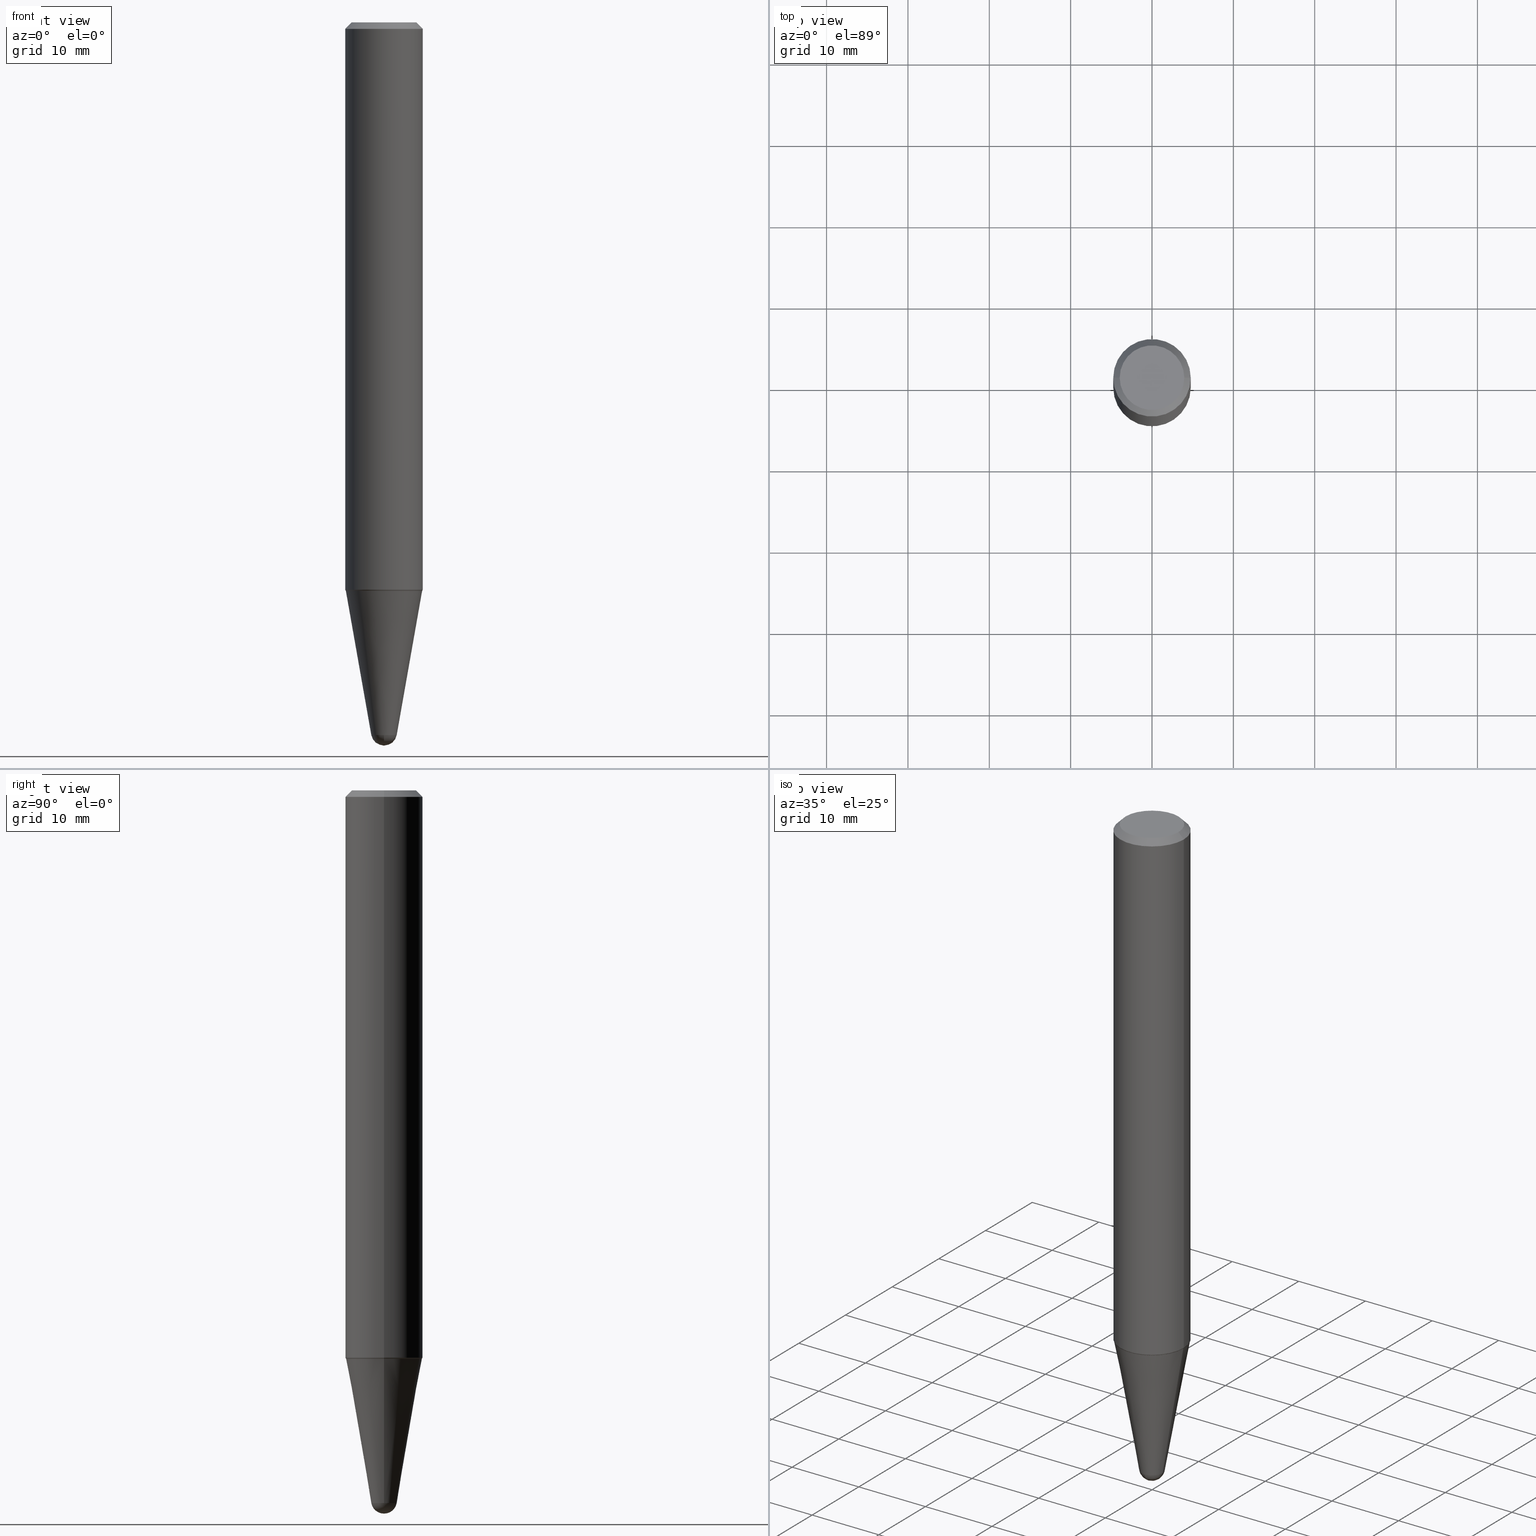
[diagram: canonical four-view strip — front | top / right | iso, engineering-drawing reading convention]
A machine part, canonical four-view strip (front | top / right | iso — engineering-drawing reading convention). The complete STEP part file that produces these views, byte-faithful:
ISO-10303-21;
HEADER;
FILE_DESCRIPTION (( 'STEP AP203' ),
    '1' );
FILE_NAME ('32458.STEP',
    '2024-03-04T15:25:03',
    ( '' ),
    ( '' ),
    'SwSTEP 2.0',
    'SolidWorks 2023',
    '' );
FILE_SCHEMA (( 'CONFIG_CONTROL_DESIGN' ));
ENDSEC;

DATA;
#1 = VERTEX_POINT ( 'NONE', #363 ) ;
#2 = CARTESIAN_POINT ( 'NONE',  ( 8.698928373755703197E-29, -1.158290521407307856E-14, -3.437499999999999556 ) ) ;
#3 = CIRCLE ( 'NONE', #60, 0.1851889624799291090 ) ;
#4 = CARTESIAN_POINT ( 'NONE',  ( 0.1851889624799291090, -1.089474129513543694E-14, -2.750000000000000000 ) ) ;
#5 = CARTESIAN_POINT ( 'NONE',  ( 0.1851889624799291090, -1.089474129513543694E-14, -2.750000000000000000 ) ) ;
#6 = ADVANCED_FACE ( 'NONE', ( #361 ), #290, .F. ) ;
#7 = EDGE_CURVE ( 'NONE', #1, #26, #260, .T. ) ;
#8 = EDGE_LOOP ( 'NONE', ( #110, #49, #385, #322 ) ) ;
#9 = SECURITY_CLASSIFICATION ( '', '', #159 ) ;
#10 = DIRECTION ( 'NONE',  ( -2.445468806185136597E-29, 3.491481338843145583E-15, 1.000000000000000000 ) ) ;
#11 = CYLINDRICAL_SURFACE ( 'NONE', #15, 0.1875000000000001943 ) ;
#12 = PERSON_AND_ORGANIZATION_ROLE ( 'design_supplier' ) ;
#13 = PLANE ( 'NONE',  #158 ) ;
#14 = PERSON_AND_ORGANIZATION ( #72, #398 ) ;
#15 = AXIS2_PLACEMENT_3D ( 'NONE', #267, #81, #189 ) ;
#16 = CARTESIAN_POINT ( 'NONE',  ( 8.432839721369867924E-29, -1.203986018801382488E-14, -3.448353011104182908 ) ) ;
#17 = CALENDAR_DATE ( 2024, 4, 3 ) ;
#18 = CARTESIAN_POINT ( 'NONE',  ( 6.725039217009124520E-29, -9.601573681818649859E-15, -2.750000000000000000 ) ) ;
#19 = PERSON_AND_ORGANIZATION ( #72, #398 ) ;
#20 = SHAPE_DEFINITION_REPRESENTATION ( #436, #263 ) ;
#21 = FACE_OUTER_BOUND ( 'NONE', #399, .T. ) ;
#22 = AXIS2_PLACEMENT_3D ( 'NONE', #364, #35, #221 ) ;
#23 = EDGE_CURVE ( 'NONE', #345, #1, #79, .T. ) ;
#24 = LINE ( 'NONE', #382, #331 ) ;
#25 = ORIENTED_EDGE ( 'NONE', *, *, #155, .T. ) ;
#26 = VERTEX_POINT ( 'NONE', #344 ) ;
#27 = CLOSED_SHELL ( 'NONE', ( #208, #420, #241, #438, #6 ) ) ;
#28 = CARTESIAN_POINT ( 'NONE',  ( 8.854442568795960594E-29, -1.179729577650343892E-14, -3.500000000000000000 ) ) ;
#29 = AXIS2_PLACEMENT_3D ( 'NONE', #39, #329, #400 ) ;
#30 = EDGE_LOOP ( 'NONE', ( #275, #209, #352, #169 ) ) ;
#31 = CARTESIAN_POINT ( 'NONE',  ( -0.1874999999999999722, -3.515420659890972439E-15, -0.03125000000000003469 ) ) ;
#32 = MANIFOLD_SOLID_BREP ( 'Body-Move/Copy2[1]', #27 ) ;
#33 = CARTESIAN_POINT ( 'NONE',  ( -0.1875000000000001943, 1.332267629550191398E-15, 5.931196827434205055E-16 ) ) ;
#34 = CIRCLE ( 'NONE', #298, 0.06155048456326336903 ) ;
#35 = DIRECTION ( 'NONE',  ( -2.445468806185136597E-29, 3.491481338843145583E-15, 1.000000000000000000 ) ) ;
#36 = EDGE_CURVE ( 'NONE', #211, #214, #266, .T. ) ;
#37 = CC_DESIGN_DATE_AND_TIME_ASSIGNMENT ( #153, #378, ( #269 ) ) ;
#38 = ORIENTED_EDGE ( 'NONE', *, *, #148, .T. ) ;
#39 = CARTESIAN_POINT ( 'NONE',  ( 6.723816482606030598E-29, -9.599827941149225989E-15, -2.749499999999999389 ) ) ;
#40 = DIRECTION ( 'NONE',  ( 1.000000000000000000, -6.982962677686269866E-15, 0.000000000000000000 ) ) ;
#41 = FACE_OUTER_BOUND ( 'NONE', #30, .T. ) ;
#42 = AXIS2_PLACEMENT_3D ( 'NONE', #302, #387, #414 ) ;
#43 = DIRECTION ( 'NONE',  ( 1.000000000000000000, -6.982962677686266711E-15, 0.000000000000000000 ) ) ;
#44 = CALENDAR_DATE ( 2024, 4, 3 ) ;
#45 = DIRECTION ( 'NONE',  ( -2.445468806185136597E-29, 3.491481338843145583E-15, 1.000000000000000000 ) ) ;
#46 = PERSON_AND_ORGANIZATION_ROLE ( 'creator' ) ;
#47 = DIRECTION ( 'NONE',  ( 1.000000000000000000, -6.982962677686266711E-15, 0.000000000000000000 ) ) ;
#48 = CALENDAR_DATE ( 2024, 4, 3 ) ;
#49 = ORIENTED_EDGE ( 'NONE', *, *, #65, .T. ) ;
#50 = AXIS2_PLACEMENT_3D ( 'NONE', #63, #174, #285 ) ;
#51 = EDGE_CURVE ( 'NONE', #434, #278, #292, .T. ) ;
#52 = CC_DESIGN_PERSON_AND_ORGANIZATION_ASSIGNMENT ( #313, #264, ( #327 ) ) ;
#53 =( NAMED_UNIT ( * ) PLANE_ANGLE_UNIT ( ) SI_UNIT ( $, .RADIAN. ) );
#54 = DIRECTION ( 'NONE',  ( 6.982962677686265922E-15, 1.000000000000000000, 0.000000000000000000 ) ) ;
#55 = DIRECTION ( 'NONE',  ( 1.000000000000000000, 0.000000000000000000, 0.000000000000000000 ) ) ;
#56 = DIRECTION ( 'NONE',  ( -2.445468806185136597E-29, 3.491481338843145583E-15, 1.000000000000000000 ) ) ;
#57 = CARTESIAN_POINT ( 'NONE',  ( 1.617471908777117797E-44, -2.309321211260124338E-30, -6.614158825850365029E-16 ) ) ;
#58 = ORIENTED_EDGE ( 'NONE', *, *, #376, .F. ) ;
#59 = APPROVAL ( #339, 'UNSPECIFIED' ) ;
#60 = AXIS2_PLACEMENT_3D ( 'NONE', #435, #219, #104 ) ;
#61 = AXIS2_PLACEMENT_3D ( 'NONE', #93, #343, #54 ) ;
#62 = VERTEX_POINT ( 'NONE', #168 ) ;
#63 = CARTESIAN_POINT ( 'NONE',  ( 7.642090019328561499E-31, -1.091087918388484350E-16, -0.03125000000000003469 ) ) ;
#64 = ORIENTED_EDGE ( 'NONE', *, *, #36, .F. ) ;
#65 = EDGE_CURVE ( 'NONE', #132, #345, #167, .T. ) ;
#66 = ORIENTED_EDGE ( 'NONE', *, *, #148, .F. ) ;
#67 = AXIS2_PLACEMENT_3D ( 'NONE', #163, #457, #315 ) ;
#68 = SPHERICAL_SURFACE ( 'NONE', #318, 0.06250000000000012490 ) ;
#69 = FACE_OUTER_BOUND ( 'NONE', #256, .T. ) ;
#70 = ORIENTED_EDGE ( 'NONE', *, *, #430, .T. ) ;
#71 = EDGE_CURVE ( 'NONE', #214, #349, #431, .T. ) ;
#72 = PERSON ( 'UNSPECIFIED', 'UNSPECIFIED', 'UNSPECIFIED', ('UNSPECIFIED'), ('UNSPECIFIED'), ('UNSPECIFIED') ) ;
#73 = DIRECTION ( 'NONE',  ( -1.000000000000000000, 6.982962677686266711E-15, 0.000000000000000000 ) ) ;
#74 = CIRCLE ( 'NONE', #134, 0.06155048456326336903 ) ;
#75 = FACE_OUTER_BOUND ( 'NONE', #8, .T. ) ;
#76 = DIRECTION ( 'NONE',  ( -2.445468806185136597E-29, 3.491481338843145583E-15, 1.000000000000000000 ) ) ;
#77 = CARTESIAN_POINT ( 'NONE',  ( 8.432839721369867924E-29, -1.203986018801382488E-14, -3.448353011104182908 ) ) ;
#78 = VECTOR ( 'NONE', #115, 39.37007874015748854 ) ;
#79 = LINE ( 'NONE', #338, #223 ) ;
#80 = APPROVAL_PERSON_ORGANIZATION ( #203, #175, #123 ) ;
#81 = DIRECTION ( 'NONE',  ( -2.445468806185136597E-29, 3.491481338843145583E-15, 1.000000000000000000 ) ) ;
#82 = CARTESIAN_POINT ( 'NONE',  ( 8.432839721369867924E-29, -1.203986018801382488E-14, -3.448353011104182908 ) ) ;
#83 = MECHANICAL_CONTEXT ( 'NONE', #105, 'mechanical' ) ;
#84 = LINE ( 'NONE', #409, #424 ) ;
#85 = DIRECTION ( 'NONE',  ( 0.4226182617407078790, 2.132291770426688021E-16, 0.9063077870366459399 ) ) ;
#86 = COORDINATED_UNIVERSAL_TIME_OFFSET ( 5, 0, .BEHIND. ) ;
#87 = ORIENTED_EDGE ( 'NONE', *, *, #353, .F. ) ;
#88 =( CONVERSION_BASED_UNIT ( 'INCH', #449 ) LENGTH_UNIT ( ) NAMED_UNIT ( #346 ) );
#89 = DIRECTION ( 'NONE',  ( 1.000000000000000000, -6.982962677686265922E-15, 0.000000000000000000 ) ) ;
#90 = AXIS2_PLACEMENT_3D ( 'NONE', #82, #335, #202 ) ;
#91 = CONICAL_SURFACE ( 'NONE', #42, 0.06155048456326336903, 0.1745329251994330311 ) ;
#92 = ORIENTED_EDGE ( 'NONE', *, *, #325, .F. ) ;
#93 = CARTESIAN_POINT ( 'NONE',  ( 8.698928373755703197E-29, -1.158290521407307856E-14, -3.437499999999999556 ) ) ;
#94 = APPROVAL ( #419, 'UNSPECIFIED' ) ;
#95 = EDGE_LOOP ( 'NONE', ( #38, #381, #350, #139 ) ) ;
#96 = CIRCLE ( 'NONE', #142, 0.06155048456326336903 ) ;
#97 = CIRCLE ( 'NONE', #417, 0.1851889624799291090 ) ;
#98 = DIRECTION ( 'NONE',  ( -2.445468806185136597E-29, 3.491481338843145583E-15, 1.000000000000000000 ) ) ;
#99 = ADVANCED_FACE ( 'NONE', ( #433 ), #125, .T. ) ;
#100 = ORIENTED_EDGE ( 'NONE', *, *, #390, .F. ) ;
#101 = EDGE_LOOP ( 'NONE', ( #320, #172, #102, #355 ) ) ;
#102 = ORIENTED_EDGE ( 'NONE', *, *, #353, .T. ) ;
#103 = FACE_OUTER_BOUND ( 'NONE', #106, .T. ) ;
#104 = DIRECTION ( 'NONE',  ( 1.000000000000000000, -6.982962677686265922E-15, 0.000000000000000000 ) ) ;
#105 = APPLICATION_CONTEXT ( 'configuration controlled 3d designs of mechanical parts and assemblies' ) ;
#106 = EDGE_LOOP ( 'NONE', ( #286, #247, #92, #100 ) ) ;
#107 = CARTESIAN_POINT ( 'NONE',  ( 8.432839721369867924E-29, -1.203986018801382488E-14, -3.448353011104182908 ) ) ;
#108 = DIRECTION ( 'NONE',  ( 2.438088387897960049E-29, -3.491481338843145188E-15, -1.000000000000000000 ) ) ;
#109 = DIRECTION ( 'NONE',  ( -2.445468806185136877E-29, 3.491481338843145188E-15, 1.000000000000000000 ) ) ;
#110 = ORIENTED_EDGE ( 'NONE', *, *, #453, .F. ) ;
#111 = CIRCLE ( 'NONE', #173, 0.1875000000000003608 ) ;
#112 = DIRECTION ( 'NONE',  ( 2.445468806185136597E-29, -3.491481338843145583E-15, -1.000000000000000000 ) ) ;
#113 = DIRECTION ( 'NONE',  ( 1.000000000000000000, -6.982962677686265922E-15, 4.883557194083112340E-29 ) ) ;
#114 = EDGE_CURVE ( 'NONE', #62, #434, #96, .T. ) ;
#115 = DIRECTION ( 'NONE',  ( 0.1736481776669304145, 2.225859148293765253E-15, 0.9848077530122080203 ) ) ;
#116 = FACE_OUTER_BOUND ( 'NONE', #138, .T. ) ;
#117 = PERSON_AND_ORGANIZATION_ROLE ( 'classification_officer' ) ;
#118 = DESIGN_CONTEXT ( 'detailed design', #374, 'design' ) ;
#119 = EDGE_CURVE ( 'NONE', #421, #278, #416, .T. ) ;
#120 = DIRECTION ( 'NONE',  ( 1.000000000000000000, -6.982962677686265922E-15, 4.852736867747361162E-29 ) ) ;
#121 = APPROVAL_DATE_TIME ( #448, #94 ) ;
#122 = CARTESIAN_POINT ( 'NONE',  ( -0.1562500000000004718, 1.145642314307903527E-15, -6.614158825850442929E-16 ) ) ;
#123 = APPROVAL_ROLE ( '' ) ;
#124 = CARTESIAN_POINT ( 'NONE',  ( 0.1846889624799291363, -1.089124981379659235E-14, -2.750000000000000000 ) ) ;
#125 = CONICAL_SURFACE ( 'NONE', #186, 0.1874999999999999722, 0.7853981633974502774 ) ;
#126 = DATE_AND_TIME ( #48, #284 ) ;
#127 = AXIS2_PLACEMENT_3D ( 'NONE', #57, #207, #271 ) ;
#128 = EDGE_LOOP ( 'NONE', ( #66, #210 ) ) ;
#129 = APPLICATION_PROTOCOL_DEFINITION ( 'international standard', 'config_control_design', 1994, #374 ) ;
#130 = DIRECTION ( 'NONE',  ( -0.4226182617407078790, 6.167240084480883365E-15, 0.9063077870366459399 ) ) ;
#131 = ORIENTED_EDGE ( 'NONE', *, *, #376, .T. ) ;
#132 = VERTEX_POINT ( 'NONE', #216 ) ;
#133 = CLOSED_SHELL ( 'NONE', ( #408, #252, #154, #332, #268, #242, #238, #288, #99, #324 ) ) ;
#134 = AXIS2_PLACEMENT_3D ( 'NONE', #16, #45, #151 ) ;
#135 = ORIENTED_EDGE ( 'NONE', *, *, #425, .T. ) ;
#136 = DIRECTION ( 'NONE',  ( -1.000000000000000000, 6.982962677686265922E-15, -4.883557194083112340E-29 ) ) ;
#137 = ORIENTED_EDGE ( 'NONE', *, *, #184, .T. ) ;
#138 = EDGE_LOOP ( 'NONE', ( #389, #141, #413, #199 ) ) ;
#139 = ORIENTED_EDGE ( 'NONE', *, *, #200, .F. ) ;
#140 = EDGE_LOOP ( 'NONE', ( #308, #180, #235, #177 ) ) ;
#141 = ORIENTED_EDGE ( 'NONE', *, *, #340, .T. ) ;
#142 = AXIS2_PLACEMENT_3D ( 'NONE', #366, #255, #149 ) ;
#143 = AXIS2_PLACEMENT_3D ( 'NONE', #333, #328, #253 ) ;
#144 = LOCAL_TIME ( 10, 25, 3.000000000000000000, #380 ) ;
#145 = DIRECTION ( 'NONE',  ( 0.7071067811863543939, -2.468850131080234027E-15, 0.7071067811867406405 ) ) ;
#146 = CARTESIAN_POINT ( 'NONE',  ( -0.1846889624799291363, -8.289279675166815415E-15, -2.750000000000000000 ) ) ;
#147 = AXIS2_PLACEMENT_3D ( 'NONE', #18, #201, #152 ) ;
#148 = EDGE_CURVE ( 'NONE', #176, #245, #3, .T. ) ;
#149 = DIRECTION ( 'NONE',  ( 1.000000000000000000, -6.982962677686260400E-15, 0.000000000000000000 ) ) ;
#150 = CARTESIAN_POINT ( 'NONE',  ( 6.725039217009124520E-29, -9.601573681818649859E-15, -2.750000000000000000 ) ) ;
#151 = DIRECTION ( 'NONE',  ( 1.000000000000000000, -6.982962677686260400E-15, 0.000000000000000000 ) ) ;
#152 = DIRECTION ( 'NONE',  ( 1.000000000000000000, -6.982962677686265922E-15, 0.000000000000000000 ) ) ;
#153 = DATE_AND_TIME ( #44, #144 ) ;
#154 = ADVANCED_FACE ( 'NONE', ( #69 ), #237, .T. ) ;
#155 = EDGE_CURVE ( 'NONE', #250, #362, #157, .T. ) ;
#156 = CARTESIAN_POINT ( 'NONE',  ( 7.642090019328561499E-31, -1.091087918388484350E-16, -0.03125000000000003469 ) ) ;
#157 = CIRCLE ( 'NONE', #341, 0.1562500000000004718 ) ;
#158 = AXIS2_PLACEMENT_3D ( 'NONE', #334, #443, #450 ) ;
#159 = SECURITY_CLASSIFICATION_LEVEL ( 'unclassified' ) ;
#160 = FACE_OUTER_BOUND ( 'NONE', #321, .T. ) ;
#161 = CARTESIAN_POINT ( 'NONE',  ( 0.000000000000000000, 0.000000000000000000, 0.000000000000000000 ) ) ;
#162 = CALENDAR_DATE ( 2024, 4, 3 ) ;
#163 = CARTESIAN_POINT ( 'NONE',  ( 6.723816482606030598E-29, -9.599827941149225989E-15, -2.749499999999999389 ) ) ;
#164 = CARTESIAN_POINT ( 'NONE',  ( -0.1851889624799291090, -8.283077734313903315E-15, -2.750000000000000000 ) ) ;
#165 = APPROVAL_STATUS ( 'not_yet_approved' ) ;
#166 = EDGE_CURVE ( 'NONE', #26, #402, #182, .T. ) ;
#167 = CIRCLE ( 'NONE', #357, 0.1856889624799295535 ) ;
#168 = CARTESIAN_POINT ( 'NONE',  ( -4.373424968893228711E-16, -0.06155048456327506801, -3.448353011104182908 ) ) ;
#169 = ORIENTED_EDGE ( 'NONE', *, *, #114, .F. ) ;
#170 = ORIENTED_EDGE ( 'NONE', *, *, #71, .T. ) ;
#171 = EDGE_CURVE ( 'NONE', #245, #132, #222, .T. ) ;
#172 = ORIENTED_EDGE ( 'NONE', *, *, #155, .F. ) ;
#173 = AXIS2_PLACEMENT_3D ( 'NONE', #461, #98, #356 ) ;
#174 = DIRECTION ( 'NONE',  ( 2.445468806185136597E-29, -3.491481338843145583E-15, -1.000000000000000000 ) ) ;
#175 = APPROVAL ( #165, 'UNSPECIFIED' ) ;
#176 = VERTEX_POINT ( 'NONE', #4 ) ;
#177 = ORIENTED_EDGE ( 'NONE', *, *, #184, .F. ) ;
#178 = MANIFOLD_SOLID_BREP ( 'Body-Move/Copy2[2]', #133 ) ;
#179 = DIRECTION ( 'NONE',  ( -2.445468806185136877E-29, 3.491481338843145188E-15, 1.000000000000000000 ) ) ;
#180 = ORIENTED_EDGE ( 'NONE', *, *, #166, .T. ) ;
#181 = VECTOR ( 'NONE', #179, 39.37007874015748143 ) ;
#182 = LINE ( 'NONE', #33, #181 ) ;
#183 = DIRECTION ( 'NONE',  ( 1.000000000000000000, -6.982962677686266711E-15, 4.891558762689330142E-29 ) ) ;
#184 = EDGE_CURVE ( 'NONE', #1, #249, #371, .T. ) ;
#185 = CARTESIAN_POINT ( 'NONE',  ( -0.06155048456326336903, -9.945898683145615595E-15, -3.448353011104182908 ) ) ;
#186 = AXIS2_PLACEMENT_3D ( 'NONE', #440, #112, #73 ) ;
#187 = CONICAL_SURFACE ( 'NONE', #217, 0.06155048456326336903, 0.1745329251994330311 ) ;
#188 = CARTESIAN_POINT ( 'NONE',  ( 0.1875000000000001943, -1.309305502066174022E-15, 5.931196827434387479E-16 ) ) ;
#189 = DIRECTION ( 'NONE',  ( 1.000000000000000000, -6.982962677686265922E-15, 4.852736867747361162E-29 ) ) ;
#190 = EDGE_CURVE ( 'NONE', #349, #214, #311, .T. ) ;
#191 = APPROVAL_ROLE ( '' ) ;
#192 = CARTESIAN_POINT ( 'NONE',  ( -1.450455682483482035E-44, 2.070866303999251778E-30, 5.931196827434296760E-16 ) ) ;
#193 = APPLICATION_PROTOCOL_DEFINITION ( 'international standard', 'config_control_design', 1994, #105 ) ;
#194 = CARTESIAN_POINT ( 'NONE',  ( 6.725039217009124520E-29, -9.601573681818649859E-15, -2.750000000000000000 ) ) ;
#195 = CIRCLE ( 'NONE', #273, 0.1874999999999999722 ) ;
#196 = CC_DESIGN_APPROVAL ( #59, ( #269 ) ) ;
#197 = CALENDAR_DATE ( 2024, 4, 3 ) ;
#198 = ORIENTED_EDGE ( 'NONE', *, *, #458, .F. ) ;
#199 = ORIENTED_EDGE ( 'NONE', *, *, #65, .F. ) ;
#200 = EDGE_CURVE ( 'NONE', #176, #345, #330, .T. ) ;
#201 = DIRECTION ( 'NONE',  ( -2.445468806185136597E-29, 3.491481338843145583E-15, 1.000000000000000000 ) ) ;
#202 = DIRECTION ( 'NONE',  ( 1.000000000000000000, -6.982962677686260400E-15, 0.000000000000000000 ) ) ;
#203 = PERSON_AND_ORGANIZATION ( #72, #398 ) ;
#204 = EDGE_LOOP ( 'NONE', ( #25, #391 ) ) ;
#205 = AXIS2_PLACEMENT_3D ( 'NONE', #403, #113, #370 ) ;
#206 = VECTOR ( 'NONE', #145, 39.37007874015748143 ) ;
#207 = DIRECTION ( 'NONE',  ( -2.445468806185136597E-29, 3.491481338843145583E-15, 1.000000000000000000 ) ) ;
#208 = ADVANCED_FACE ( 'NONE', ( #368 ), #187, .T. ) ;
#209 = ORIENTED_EDGE ( 'NONE', *, *, #119, .T. ) ;
#210 = ORIENTED_EDGE ( 'NONE', *, *, #340, .F. ) ;
#211 = VERTEX_POINT ( 'NONE', #185 ) ;
#212 = AXIS2_PLACEMENT_3D ( 'NONE', #150, #108, #405 ) ;
#213 = CC_DESIGN_APPROVAL ( #175, ( #294 ) ) ;
#214 = VERTEX_POINT ( 'NONE', #146 ) ;
#215 = DIRECTION ( 'NONE',  ( 1.000000000000000000, -6.982962677686268288E-15, 0.000000000000000000 ) ) ;
#216 = CARTESIAN_POINT ( 'NONE',  ( -0.1856889624799295535, -8.280428507139788170E-15, -2.749499999999999389 ) ) ;
#217 = AXIS2_PLACEMENT_3D ( 'NONE', #107, #10, #291 ) ;
#218 = CC_DESIGN_SECURITY_CLASSIFICATION ( #9, ( #294 ) ) ;
#219 = DIRECTION ( 'NONE',  ( -2.445468806185136597E-29, 3.491481338843145583E-15, 1.000000000000000000 ) ) ;
#220 = EDGE_CURVE ( 'NONE', #421, #62, #407, .T. ) ;
#221 = DIRECTION ( 'NONE',  ( 1.000000000000000000, -6.982962677686268288E-15, 0.000000000000000000 ) ) ;
#222 = LINE ( 'NONE', #323, #426 ) ;
#223 = VECTOR ( 'NONE', #85, 39.37007874015748143 ) ;
#224 = CC_DESIGN_PERSON_AND_ORGANIZATION_ASSIGNMENT ( #336, #12, ( #294 ) ) ;
#225 = CONICAL_SURFACE ( 'NONE', #147, 0.1851889624799291090, 0.7853981633971751641 ) ;
#226 = CARTESIAN_POINT ( 'NONE',  ( 4.298047364988575990E-16, 0.06155048456325139944, -3.448353011104182908 ) ) ;
#227 = CARTESIAN_POINT ( 'NONE',  ( 6.723816482606030598E-29, -9.599827941149225989E-15, -2.749499999999999389 ) ) ;
#228 = PERSON_AND_ORGANIZATION_ROLE ( 'creator' ) ;
#229 = CARTESIAN_POINT ( 'NONE',  ( 7.642090019328561499E-31, -1.091087918388484350E-16, -0.03125000000000003469 ) ) ;
#230 = UNCERTAINTY_MEASURE_WITH_UNIT (LENGTH_MEASURE( 1.000000000000000082E-05 ), #88, 'distance_accuracy_value', 'NONE');
#231 = CARTESIAN_POINT ( 'NONE',  ( 0.06155048456326336903, -1.168045736915459686E-14, -3.448353011104182908 ) ) ;
#232 = DIRECTION ( 'NONE',  ( -2.445468806185136597E-29, 3.491481338843145583E-15, 1.000000000000000000 ) ) ;
#233 = DIRECTION ( 'NONE',  ( -2.445468806185136597E-29, 3.491481338843145583E-15, 1.000000000000000000 ) ) ;
#234 = PERSON_AND_ORGANIZATION ( #72, #398 ) ;
#235 = ORIENTED_EDGE ( 'NONE', *, *, #303, .F. ) ;
#236 = CYLINDRICAL_SURFACE ( 'NONE', #388, 0.1875000000000001943 ) ;
#237 = CONICAL_SURFACE ( 'NONE', #22, 0.1856889624799295535, 0.4363323129985916538 ) ;
#238 = ADVANCED_FACE ( 'NONE', ( #75 ), #326, .T. ) ;
#239 = ORIENTED_EDGE ( 'NONE', *, *, #401, .T. ) ;
#240 = DIRECTION ( 'NONE',  ( 1.000000000000000000, -6.982962677686265922E-15, 4.876176775795935793E-29 ) ) ;
#241 = ADVANCED_FACE ( 'NONE', ( #41 ), #418, .T. ) ;
#242 = ADVANCED_FACE ( 'NONE', ( #116 ), #225, .T. ) ;
#243 = CIRCLE ( 'NONE', #283, 0.1874999999999999722 ) ;
#244 = ORIENTED_EDGE ( 'NONE', *, *, #7, .F. ) ;
#245 = VERTEX_POINT ( 'NONE', #164 ) ;
#246 = FACE_OUTER_BOUND ( 'NONE', #393, .T. ) ;
#247 = ORIENTED_EDGE ( 'NONE', *, *, #220, .T. ) ;
#248 = DIRECTION ( 'NONE',  ( -0.7071067811863543939, 7.493145998869656807E-15, 0.7071067811867406405 ) ) ;
#249 = VERTEX_POINT ( 'NONE', #265 ) ;
#250 = VERTEX_POINT ( 'NONE', #122 ) ;
#251 = CARTESIAN_POINT ( 'NONE',  ( 8.698928373755703197E-29, -1.158290521407307856E-14, -3.437499999999999556 ) ) ;
#252 = ADVANCED_FACE ( 'NONE', ( #272 ), #236, .T. ) ;
#253 = DIRECTION ( 'NONE',  ( 1.000000000000000000, -6.982962677686268288E-15, 0.000000000000000000 ) ) ;
#254 = VECTOR ( 'NONE', #444, 39.37007874015748143 ) ;
#255 = DIRECTION ( 'NONE',  ( -2.445468806185136597E-29, 3.491481338843145583E-15, 1.000000000000000000 ) ) ;
#256 = EDGE_LOOP ( 'NONE', ( #70, #459, #244, #314 ) ) ;
#257 = CARTESIAN_POINT ( 'NONE',  ( 1.617471908777117797E-44, -2.309321211260124338E-30, -6.614158825850365029E-16 ) ) ;
#258 = CC_DESIGN_PERSON_AND_ORGANIZATION_ASSIGNMENT ( #19, #228, ( #269 ) ) ;
#259 = CARTESIAN_POINT ( 'NONE',  ( 6.725039217009124520E-29, -9.601573681818649859E-15, -2.750000000000000000 ) ) ;
#260 = CIRCLE ( 'NONE', #396, 0.1875000000000003608 ) ;
#261 = AXIS2_PLACEMENT_3D ( 'NONE', #251, #289, #395 ) ;
#262 = CARTESIAN_POINT ( 'NONE',  ( 6.725039217009124520E-29, -9.601573681818649859E-15, -2.750000000000000000 ) ) ;
#263 = ADVANCED_BREP_SHAPE_REPRESENTATION ( '32458', ( #32, #178, #432 ), #372 ) ;
#264 = PERSON_AND_ORGANIZATION_ROLE ( 'design_owner' ) ;
#265 = CARTESIAN_POINT ( 'NONE',  ( 0.1874999999999999722, -1.418414293905023123E-15, -0.03125000000000003469 ) ) ;
#266 = LINE ( 'NONE', #412, #423 ) ;
#267 = CARTESIAN_POINT ( 'NONE',  ( -1.450455682483482035E-44, 2.070866303999251778E-30, 5.931196827434296760E-16 ) ) ;
#268 = ADVANCED_FACE ( 'NONE', ( #379 ), #309, .F. ) ;
#269 = PRODUCT_DEFINITION ( 'UNKNOWN', '', #294, #118 ) ;
#270 = COORDINATED_UNIVERSAL_TIME_OFFSET ( 5, 0, .BEHIND. ) ;
#271 = DIRECTION ( 'NONE',  ( 1.000000000000000000, -6.982962677686266711E-15, 4.891558762689330142E-29 ) ) ;
#272 = FACE_OUTER_BOUND ( 'NONE', #140, .T. ) ;
#273 = AXIS2_PLACEMENT_3D ( 'NONE', #229, #411, #47 ) ;
#274 = DATE_AND_TIME ( #17, #360 ) ;
#275 = ORIENTED_EDGE ( 'NONE', *, *, #220, .F. ) ;
#276 = ORIENTED_EDGE ( 'NONE', *, *, #71, .F. ) ;
#277 =( LENGTH_UNIT ( ) NAMED_UNIT ( * ) SI_UNIT ( $, .METRE. ) );
#278 = VERTEX_POINT ( 'NONE', #226 ) ;
#279 = AXIS2_PLACEMENT_3D ( 'NONE', #194, #56, #89 ) ;
#280 = EDGE_CURVE ( 'NONE', #402, #249, #243, .T. ) ;
#281 = ORIENTED_EDGE ( 'NONE', *, *, #190, .F. ) ;
#282 = DIRECTION ( 'NONE',  ( 1.000000000000000000, -6.982962677686268288E-15, 0.000000000000000000 ) ) ;
#283 = AXIS2_PLACEMENT_3D ( 'NONE', #156, #452, #43 ) ;
#284 = LOCAL_TIME ( 10, 25, 3.000000000000000000, #86 ) ;
#285 = DIRECTION ( 'NONE',  ( -1.000000000000000000, 6.982962677686266711E-15, 0.000000000000000000 ) ) ;
#286 = ORIENTED_EDGE ( 'NONE', *, *, #119, .F. ) ;
#287 = CARTESIAN_POINT ( 'NONE',  ( 6.725039217009124520E-29, -9.601573681818649859E-15, -2.750000000000000000 ) ) ;
#288 = ADVANCED_FACE ( 'NONE', ( #160 ), #11, .T. ) ;
#289 = DIRECTION ( 'NONE',  ( -1.000000000000000000, 7.105427357601001070E-15, -4.926315508542082329E-29 ) ) ;
#290 = PLANE ( 'NONE',  #212 ) ;
#291 = DIRECTION ( 'NONE',  ( 1.000000000000000000, -6.982962677686260400E-15, 0.000000000000000000 ) ) ;
#292 = CIRCLE ( 'NONE', #90, 0.06155048456326336903 ) ;
#293 = CIRCLE ( 'NONE', #127, 0.1562500000000004718 ) ;
#294 = PRODUCT_DEFINITION_FORMATION_WITH_SPECIFIED_SOURCE ( 'ANY', '', #327, .NOT_KNOWN. ) ;
#295 = LINE ( 'NONE', #373, #254 ) ;
#296 = DIRECTION ( 'NONE',  ( -0.7071067811865489050, 2.468850131082271655E-15, -0.7071067811865461294 ) ) ;
#297 = DATE_TIME_ROLE ( 'classification_date' ) ;
#298 = AXIS2_PLACEMENT_3D ( 'NONE', #77, #375, #386 ) ;
#299 = APPROVAL_PERSON_ORGANIZATION ( #445, #94, #347 ) ;
#300 = DIRECTION ( 'NONE',  ( -2.445468806185136597E-29, 3.491481338843145583E-15, 1.000000000000000000 ) ) ;
#301 = COORDINATED_UNIVERSAL_TIME_OFFSET ( 5, 0, .BEHIND. ) ;
#302 = CARTESIAN_POINT ( 'NONE',  ( 8.432839721369867924E-29, -1.203986018801382488E-14, -3.448353011104182908 ) ) ;
#303 = EDGE_CURVE ( 'NONE', #249, #402, #195, .T. ) ;
#304 = CC_DESIGN_PERSON_AND_ORGANIZATION_ASSIGNMENT ( #234, #117, ( #9 ) ) ;
#305 = FACE_OUTER_BOUND ( 'NONE', #204, .T. ) ;
#306 = DATE_AND_TIME ( #162, #348 ) ;
#307 = ORIENTED_EDGE ( 'NONE', *, *, #166, .F. ) ;
#308 = ORIENTED_EDGE ( 'NONE', *, *, #7, .T. ) ;
#309 = PLANE ( 'NONE',  #446 ) ;
#310 =( NAMED_UNIT ( * ) SI_UNIT ( $, .STERADIAN. ) SOLID_ANGLE_UNIT ( ) );
#311 = CIRCLE ( 'NONE', #143, 0.1846889624799291363 ) ;
#312 = CC_DESIGN_PERSON_AND_ORGANIZATION_ASSIGNMENT ( #410, #46, ( #294 ) ) ;
#313 = PERSON_AND_ORGANIZATION ( #72, #398 ) ;
#314 = ORIENTED_EDGE ( 'NONE', *, *, #23, .F. ) ;
#315 = DIRECTION ( 'NONE',  ( 1.000000000000000000, -6.982962677686268288E-15, 0.000000000000000000 ) ) ;
#316 = ORIENTED_EDGE ( 'NONE', *, *, #114, .T. ) ;
#317 = ORIENTED_EDGE ( 'NONE', *, *, #325, .T. ) ;
#318 = AXIS2_PLACEMENT_3D ( 'NONE', #2, #136, #428 ) ;
#319 = CC_DESIGN_APPROVAL ( #94, ( #9 ) ) ;
#320 = ORIENTED_EDGE ( 'NONE', *, *, #401, .F. ) ;
#321 = EDGE_LOOP ( 'NONE', ( #307, #135, #137, #437 ) ) ;
#322 = ORIENTED_EDGE ( 'NONE', *, *, #425, .F. ) ;
#323 = CARTESIAN_POINT ( 'NONE',  ( -0.1851889624799291090, -8.285726961488016883E-15, -2.750000000000000000 ) ) ;
#324 = ADVANCED_FACE ( 'NONE', ( #305 ), #13, .F. ) ;
#325 = EDGE_CURVE ( 'NONE', #211, #62, #34, .T. ) ;
#326 = CONICAL_SURFACE ( 'NONE', #29, 0.1856889624799295535, 0.4363323129985916538 ) ;
#327 = PRODUCT ( '32458', '32458', '', ( #83 ) ) ;
#328 = DIRECTION ( 'NONE',  ( -2.445468806185136597E-29, 3.491481338843145583E-15, 1.000000000000000000 ) ) ;
#329 = DIRECTION ( 'NONE',  ( -2.445468806185136597E-29, 3.491481338843145583E-15, 1.000000000000000000 ) ) ;
#330 = LINE ( 'NONE', #5, #206 ) ;
#331 = VECTOR ( 'NONE', #130, 39.37007874015748143 ) ;
#332 = ADVANCED_FACE ( 'NONE', ( #415 ), #367, .T. ) ;
#333 = CARTESIAN_POINT ( 'NONE',  ( 6.725039217009124520E-29, -9.601573681818649859E-15, -2.750000000000000000 ) ) ;
#334 = CARTESIAN_POINT ( 'NONE',  ( 8.087359543885587740E-45, -1.154660605630061818E-30, -3.307079412925182022E-16 ) ) ;
#335 = DIRECTION ( 'NONE',  ( -2.445468806185136597E-29, 3.491481338843145583E-15, 1.000000000000000000 ) ) ;
#336 = PERSON_AND_ORGANIZATION ( #72, #398 ) ;
#337 = LINE ( 'NONE', #342, #78 ) ;
#338 = CARTESIAN_POINT ( 'NONE',  ( 0.1856889624799295535, -1.089648703580485923E-14, -2.749499999999999389 ) ) ;
#339 = APPROVAL_STATUS ( 'not_yet_approved' ) ;
#340 = EDGE_CURVE ( 'NONE', #245, #176, #97, .T. ) ;
#341 = AXIS2_PLACEMENT_3D ( 'NONE', #257, #76, #183 ) ;
#342 = CARTESIAN_POINT ( 'NONE',  ( 0.06155048456326336903, -1.246966492451259664E-14, -3.448353011104182908 ) ) ;
#343 = DIRECTION ( 'NONE',  ( -1.000000000000000000, 6.982962677686265922E-15, -4.883557194083112340E-29 ) ) ;
#344 = CARTESIAN_POINT ( 'NONE',  ( -0.1875000000000003608, -8.254000157493289148E-15, -2.745616217504904810 ) ) ;
#345 = VERTEX_POINT ( 'NONE', #384 ) ;
#346 = DIMENSIONAL_EXPONENTS ( 1.000000000000000000, 0.000000000000000000, 0.000000000000000000, 0.000000000000000000, 0.000000000000000000, 0.000000000000000000, 0.000000000000000000 ) ;
#347 = APPROVAL_ROLE ( '' ) ;
#348 = LOCAL_TIME ( 10, 25, 3.000000000000000000, #451 ) ;
#349 = VERTEX_POINT ( 'NONE', #124 ) ;
#350 = ORIENTED_EDGE ( 'NONE', *, *, #430, .F. ) ;
#351 = CARTESIAN_POINT ( 'NONE',  ( 0.1562500000000004718, -1.233702489286409101E-15, -6.614158825850284171E-16 ) ) ;
#352 = ORIENTED_EDGE ( 'NONE', *, *, #51, .F. ) ;
#353 = EDGE_CURVE ( 'NONE', #250, #402, #84, .T. ) ;
#354 = CC_DESIGN_DATE_AND_TIME_ASSIGNMENT ( #274, #297, ( #9 ) ) ;
#355 = ORIENTED_EDGE ( 'NONE', *, *, #280, .T. ) ;
#356 = DIRECTION ( 'NONE',  ( 1.000000000000000000, -6.982962677686269866E-15, 0.000000000000000000 ) ) ;
#357 = AXIS2_PLACEMENT_3D ( 'NONE', #227, #233, #215 ) ;
#358 = CIRCLE ( 'NONE', #67, 0.1856889624799295535 ) ;
#359 = EDGE_LOOP ( 'NONE', ( #460, #170 ) ) ;
#360 = LOCAL_TIME ( 10, 25, 3.000000000000000000, #270 ) ;
#361 = FACE_OUTER_BOUND ( 'NONE', #359, .T. ) ;
#362 = VERTEX_POINT ( 'NONE', #351 ) ;
#363 = CARTESIAN_POINT ( 'NONE',  ( 0.1875000000000003608, -1.089557328910965674E-14, -2.745616217504904810 ) ) ;
#364 = CARTESIAN_POINT ( 'NONE',  ( 6.723816482606030598E-29, -9.599827941149225989E-15, -2.749499999999999389 ) ) ;
#365 = ORIENTED_EDGE ( 'NONE', *, *, #51, .T. ) ;
#366 = CARTESIAN_POINT ( 'NONE',  ( 8.432839721369867924E-29, -1.203986018801382488E-14, -3.448353011104182908 ) ) ;
#367 = CONICAL_SURFACE ( 'NONE', #279, 0.1851889624799291090, 0.7853981633971751641 ) ;
#368 = FACE_OUTER_BOUND ( 'NONE', #392, .T. ) ;
#369 = DIRECTION ( 'NONE',  ( -2.445468806185136597E-29, 3.491481338843145583E-15, 1.000000000000000000 ) ) ;
#370 = DIRECTION ( 'NONE',  ( 6.982962677686265133E-15, 1.000000000000000000, 0.000000000000000000 ) ) ;
#371 = LINE ( 'NONE', #188, #383 ) ;
#372 =( GEOMETRIC_REPRESENTATION_CONTEXT ( 3 ) GLOBAL_UNCERTAINTY_ASSIGNED_CONTEXT ( ( #230 ) ) GLOBAL_UNIT_ASSIGNED_CONTEXT ( ( #88, #53, #310 ) ) REPRESENTATION_CONTEXT ( 'NONE', 'WORKASPACE' ) );
#373 = CARTESIAN_POINT ( 'NONE',  ( 0.1874999999999999722, -1.395452166421010480E-15, -0.03125000000000003469 ) ) ;
#374 = APPLICATION_CONTEXT ( 'configuration controlled 3d designs of mechanical parts and assemblies' ) ;
#375 = DIRECTION ( 'NONE',  ( -2.445468806185136597E-29, 3.491481338843145583E-15, 1.000000000000000000 ) ) ;
#376 = EDGE_CURVE ( 'NONE', #434, #349, #337, .T. ) ;
#377 = DIRECTION ( 'NONE',  ( 0.000000000000000000, 0.000000000000000000, 1.000000000000000000 ) ) ;
#378 = DATE_TIME_ROLE ( 'creation_date' ) ;
#379 = FACE_OUTER_BOUND ( 'NONE', #128, .T. ) ;
#380 = COORDINATED_UNIVERSAL_TIME_OFFSET ( 5, 0, .BEHIND. ) ;
#381 = ORIENTED_EDGE ( 'NONE', *, *, #171, .T. ) ;
#382 = CARTESIAN_POINT ( 'NONE',  ( -0.1856889624799295535, -8.280428507139788170E-15, -2.749499999999999389 ) ) ;
#383 = VECTOR ( 'NONE', #109, 39.37007874015748143 ) ;
#384 = CARTESIAN_POINT ( 'NONE',  ( 0.1856889624799295535, -1.089648703580485923E-14, -2.749499999999999389 ) ) ;
#385 = ORIENTED_EDGE ( 'NONE', *, *, #23, .T. ) ;
#386 = DIRECTION ( 'NONE',  ( 1.000000000000000000, -6.982962677686260400E-15, 0.000000000000000000 ) ) ;
#387 = DIRECTION ( 'NONE',  ( -2.445468806185136597E-29, 3.491481338843145583E-15, 1.000000000000000000 ) ) ;
#388 = AXIS2_PLACEMENT_3D ( 'NONE', #192, #232, #120 ) ;
#389 = ORIENTED_EDGE ( 'NONE', *, *, #171, .F. ) ;
#390 = EDGE_CURVE ( 'NONE', #278, #211, #74, .T. ) ;
#391 = ORIENTED_EDGE ( 'NONE', *, *, #458, .T. ) ;
#392 = EDGE_LOOP ( 'NONE', ( #427, #429, #281, #58, #365 ) ) ;
#393 = EDGE_LOOP ( 'NONE', ( #198, #239, #456, #87 ) ) ;
#394 = APPROVAL_PERSON_ORGANIZATION ( #14, #59, #191 ) ;
#395 = DIRECTION ( 'NONE',  ( -7.105427357601000281E-15, -1.000000000000000000, 0.000000000000000000 ) ) ;
#396 = AXIS2_PLACEMENT_3D ( 'NONE', #397, #369, #40 ) ;
#397 = CARTESIAN_POINT ( 'NONE',  ( 6.714318813664270048E-29, -9.586267787043478574E-15, -2.745616217504904810 ) ) ;
#398 = ORGANIZATION ( 'UNSPECIFIED', 'UNSPECIFIED', '' ) ;
#399 = EDGE_LOOP ( 'NONE', ( #64, #317, #316, #131, #276 ) ) ;
#400 = DIRECTION ( 'NONE',  ( 1.000000000000000000, -6.982962677686268288E-15, 0.000000000000000000 ) ) ;
#401 = EDGE_CURVE ( 'NONE', #362, #249, #295, .T. ) ;
#402 = VERTEX_POINT ( 'NONE', #31 ) ;
#403 = CARTESIAN_POINT ( 'NONE',  ( 8.698928373755703197E-29, -1.158290521407307856E-14, -3.437499999999999556 ) ) ;
#404 = DIRECTION ( 'NONE',  ( -2.438088387897960049E-29, 3.491481338843145188E-15, 1.000000000000000000 ) ) ;
#405 = DIRECTION ( 'NONE',  ( -1.000000000000000000, 6.982962677686265922E-15, -4.876176775795935793E-29 ) ) ;
#406 = AXIS2_PLACEMENT_3D ( 'NONE', #287, #442, #282 ) ;
#407 = CIRCLE ( 'NONE', #261, 0.06250000000000012490 ) ;
#408 = ADVANCED_FACE ( 'NONE', ( #246 ), #462, .T. ) ;
#409 = CARTESIAN_POINT ( 'NONE',  ( -0.1874999999999999722, 1.200196710227326499E-15, -0.03125000000000003469 ) ) ;
#410 = PERSON_AND_ORGANIZATION ( #72, #398 ) ;
#411 = DIRECTION ( 'NONE',  ( -2.445468806185136597E-29, 3.491481338843145583E-15, 1.000000000000000000 ) ) ;
#412 = CARTESIAN_POINT ( 'NONE',  ( -0.06155048456326336903, -1.160251769112441577E-14, -3.448353011104182908 ) ) ;
#413 = ORIENTED_EDGE ( 'NONE', *, *, #200, .T. ) ;
#414 = DIRECTION ( 'NONE',  ( 1.000000000000000000, -6.982962677686260400E-15, 0.000000000000000000 ) ) ;
#415 = FACE_OUTER_BOUND ( 'NONE', #95, .T. ) ;
#416 = CIRCLE ( 'NONE', #205, 0.06250000000000012490 ) ;
#417 = AXIS2_PLACEMENT_3D ( 'NONE', #262, #300, #447 ) ;
#418 = SPHERICAL_SURFACE ( 'NONE', #61, 0.06250000000000012490 ) ;
#419 = APPROVAL_STATUS ( 'not_yet_approved' ) ;
#420 = ADVANCED_FACE ( 'NONE', ( #103 ), #68, .T. ) ;
#421 = VERTEX_POINT ( 'NONE', #28 ) ;
#422 = APPROVAL_DATE_TIME ( #306, #59 ) ;
#423 = VECTOR ( 'NONE', #454, 39.37007874015748854 ) ;
#424 = VECTOR ( 'NONE', #296, 39.37007874015748143 ) ;
#425 = EDGE_CURVE ( 'NONE', #26, #1, #111, .T. ) ;
#426 = VECTOR ( 'NONE', #248, 39.37007874015748143 ) ;
#427 = ORIENTED_EDGE ( 'NONE', *, *, #390, .T. ) ;
#428 = DIRECTION ( 'NONE',  ( 6.982962677686265922E-15, 1.000000000000000000, 0.000000000000000000 ) ) ;
#429 = ORIENTED_EDGE ( 'NONE', *, *, #36, .T. ) ;
#430 = EDGE_CURVE ( 'NONE', #345, #132, #358, .T. ) ;
#431 = CIRCLE ( 'NONE', #406, 0.1846889624799291363 ) ;
#432 = AXIS2_PLACEMENT_3D ( 'NONE', #161, #377, #55 ) ;
#433 = FACE_OUTER_BOUND ( 'NONE', #101, .T. ) ;
#434 = VERTEX_POINT ( 'NONE', #231 ) ;
#435 = CARTESIAN_POINT ( 'NONE',  ( 6.725039217009124520E-29, -9.601573681818649859E-15, -2.750000000000000000 ) ) ;
#436 = PRODUCT_DEFINITION_SHAPE ( 'NONE', 'NONE',  #269 ) ;
#437 = ORIENTED_EDGE ( 'NONE', *, *, #280, .F. ) ;
#438 = ADVANCED_FACE ( 'NONE', ( #21 ), #91, .T. ) ;
#439 = PRODUCT_RELATED_PRODUCT_CATEGORY ( 'detail', '', ( #327 ) ) ;
#440 = CARTESIAN_POINT ( 'NONE',  ( 7.642090019328561499E-31, -1.091087918388484350E-16, -0.03125000000000003469 ) ) ;
#441 = LOCAL_TIME ( 10, 25, 3.000000000000000000, #301 ) ;
#442 = DIRECTION ( 'NONE',  ( -2.445468806185136597E-29, 3.491481338843145583E-15, 1.000000000000000000 ) ) ;
#443 = DIRECTION ( 'NONE',  ( 2.438088387897960049E-29, -3.491481338843145188E-15, -1.000000000000000000 ) ) ;
#444 = DIRECTION ( 'NONE',  ( 0.7071067811865489050, -7.319954787623260779E-15, -0.7071067811865461294 ) ) ;
#445 = PERSON_AND_ORGANIZATION ( #72, #398 ) ;
#446 = AXIS2_PLACEMENT_3D ( 'NONE', #259, #404, #240 ) ;
#447 = DIRECTION ( 'NONE',  ( 1.000000000000000000, -6.982962677686265922E-15, 0.000000000000000000 ) ) ;
#448 = DATE_AND_TIME ( #197, #441 ) ;
#449 = LENGTH_MEASURE_WITH_UNIT ( LENGTH_MEASURE( 0.02539999999999999897 ), #277 );
#450 = DIRECTION ( 'NONE',  ( -1.000000000000000000, 6.982962677686265922E-15, -4.876176775795935793E-29 ) ) ;
#451 = COORDINATED_UNIVERSAL_TIME_OFFSET ( 5, 0, .BEHIND. ) ;
#452 = DIRECTION ( 'NONE',  ( -2.445468806185136597E-29, 3.491481338843145583E-15, 1.000000000000000000 ) ) ;
#453 = EDGE_CURVE ( 'NONE', #132, #26, #24, .T. ) ;
#454 = DIRECTION ( 'NONE',  ( -0.1736481776669304145, 4.672282404182340767E-15, 0.9848077530122080203 ) ) ;
#455 = APPROVAL_DATE_TIME ( #126, #175 ) ;
#456 = ORIENTED_EDGE ( 'NONE', *, *, #303, .T. ) ;
#457 = DIRECTION ( 'NONE',  ( -2.445468806185136597E-29, 3.491481338843145583E-15, 1.000000000000000000 ) ) ;
#458 = EDGE_CURVE ( 'NONE', #362, #250, #293, .T. ) ;
#459 = ORIENTED_EDGE ( 'NONE', *, *, #453, .T. ) ;
#460 = ORIENTED_EDGE ( 'NONE', *, *, #190, .T. ) ;
#461 = CARTESIAN_POINT ( 'NONE',  ( 6.714318813664270048E-29, -9.586267787043478574E-15, -2.745616217504904810 ) ) ;
#462 = CONICAL_SURFACE ( 'NONE', #50, 0.1874999999999999722, 0.7853981633974502774 ) ;
ENDSEC;
END-ISO-10303-21;
